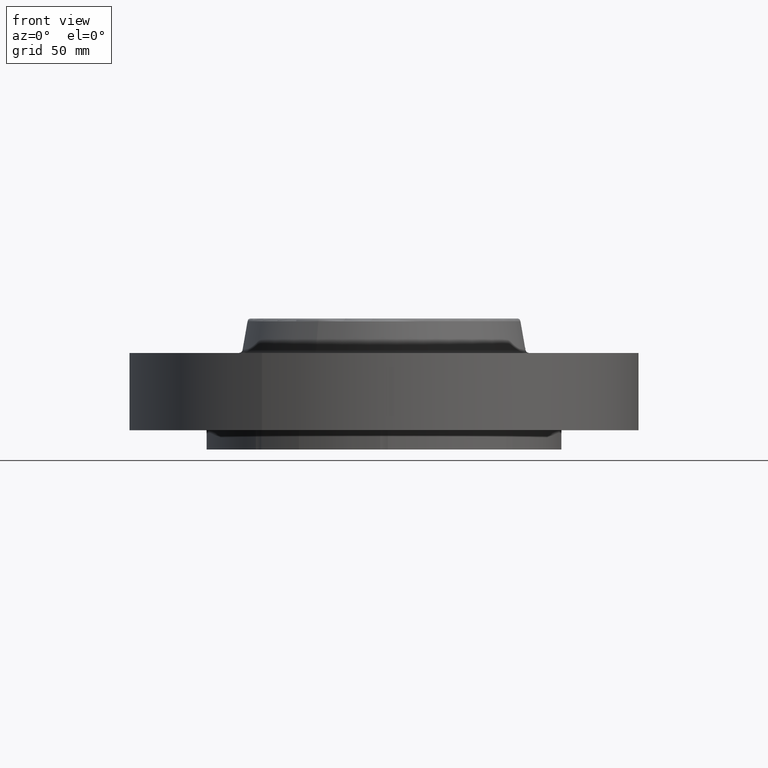
[diagram: clean part render]
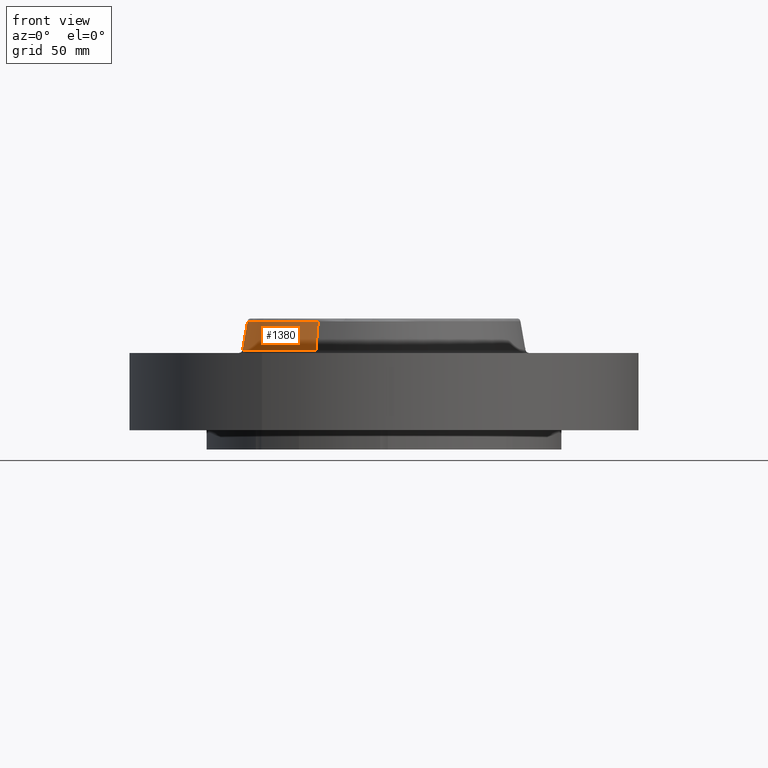
[diagram: same view with one face highlighted and labeled with its STEP entity id]
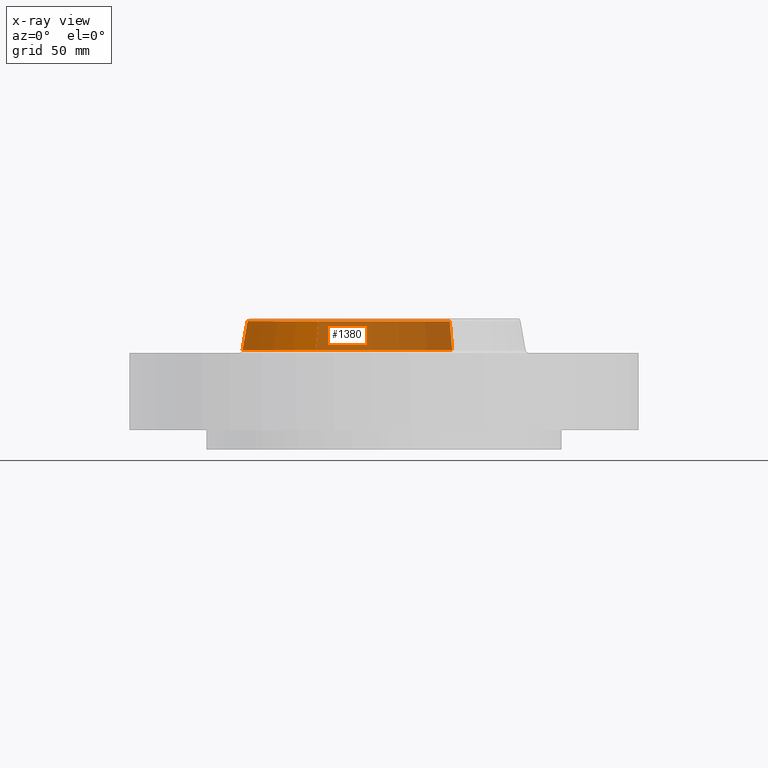
[diagram: x-ray of the same camera — body ghosted, the highlighted face saturated]
A machine part, front view. The second image highlights one B-rep face of the part: STEP entity #1380.
The next image is the same camera in x-ray: the body ghosted, the highlighted face saturated — about 65% of this face is hidden behind the body in this view.
In plain terms, the highlighted conical surface has half-angle 10 deg.
Its self-contained STEP definition (entity closure, byte-faithful):
#1285=AXIS2_PLACEMENT_3D('Circle Axis2P3D',#1283,#1284,$) ;
#1341=AXIS2_PLACEMENT_3D('Cone Axis2P3D',#1338,#1339,#1340) ;
#1371=AXIS2_PLACEMENT_3D('Circle Axis2P3D',#1369,#1370,$) ;
#1256=CARTESIAN_POINT('Vertex',(1.10328162249,2.01954346356,1.29958110935)) ;
#1263=CARTESIAN_POINT('Vertex',(-1.10328162249,-2.01954346356,1.29958110935)) ;
#1283=CARTESIAN_POINT('Axis2P3D Location',(0.,0.,1.29958110935)) ;
#1338=CARTESIAN_POINT('Axis2P3D Location',(0.,0.,1.76041889067)) ;
#1343=CARTESIAN_POINT('Line Origine',(1.08380301002,1.98388810261,1.53000000001)) ;
#1347=CARTESIAN_POINT('Vertex',(1.06432439756,1.94823274165,1.76041889067)) ;
#1354=CARTESIAN_POINT('Vertex',(-1.06432439756,-1.94823274165,1.76041889067)) ;
#1357=CARTESIAN_POINT('Line Origine',(-1.08380301002,-1.98388810261,1.53000000001)) ;
#1369=CARTESIAN_POINT('Axis2P3D Location',(0.,0.,1.76041889067)) ;
#1284=DIRECTION('Axis2P3D Direction',(0.,0.,-0.0393700787402)) ;
#1339=DIRECTION('Axis2P3D Direction',(0.,0.,-0.0393700787402)) ;
#1340=DIRECTION('Axis2P3D XDirection',(-0.0188750212049,-0.0345504945626,0.)) ;
#1344=DIRECTION('Vector Direction',(0.00327761303565,0.00599963041829,-0.03877195878)) ;
#1358=DIRECTION('Vector Direction',(-0.00327761303565,-0.00599963041829,-0.03877195878)) ;
#1370=DIRECTION('Axis2P3D Direction',(0.,0.,-0.0393700787402)) ;
#1345=VECTOR('Line Direction',#1344,0.0393700787402) ;
#1359=VECTOR('Line Direction',#1358,0.0393700787402) ;
#1375=ORIENTED_EDGE('',*,*,#1287,.F.) ;
#1376=ORIENTED_EDGE('',*,*,#1361,.T.) ;
#1377=ORIENTED_EDGE('',*,*,#1373,.T.) ;
#1378=ORIENTED_EDGE('',*,*,#1349,.F.) ;
#1380=ADVANCED_FACE('PartBody',(#1379),#1342,.T.) ;
#1286=CIRCLE('generated circle',#1285,2.3012575127) ;
#1372=CIRCLE('generated circle',#1371,2.21999937812) ;
#1342=CONICAL_SURFACE('Cone',#1341,2.21999937812,0.174532925199) ;
#1287=EDGE_CURVE('',#1264,#1257,#1286,.T.) ;
#1349=EDGE_CURVE('',#1257,#1348,#1346,.F.) ;
#1361=EDGE_CURVE('',#1264,#1355,#1360,.F.) ;
#1373=EDGE_CURVE('',#1355,#1348,#1372,.T.) ;
#1374=EDGE_LOOP('',(#1375,#1376,#1377,#1378)) ;
#1379=FACE_OUTER_BOUND('',#1374,.T.) ;
#1346=LINE('Line',#1343,#1345) ;
#1360=LINE('Line',#1357,#1359) ;
#1257=VERTEX_POINT('',#1256) ;
#1264=VERTEX_POINT('',#1263) ;
#1348=VERTEX_POINT('',#1347) ;
#1355=VERTEX_POINT('',#1354) ;